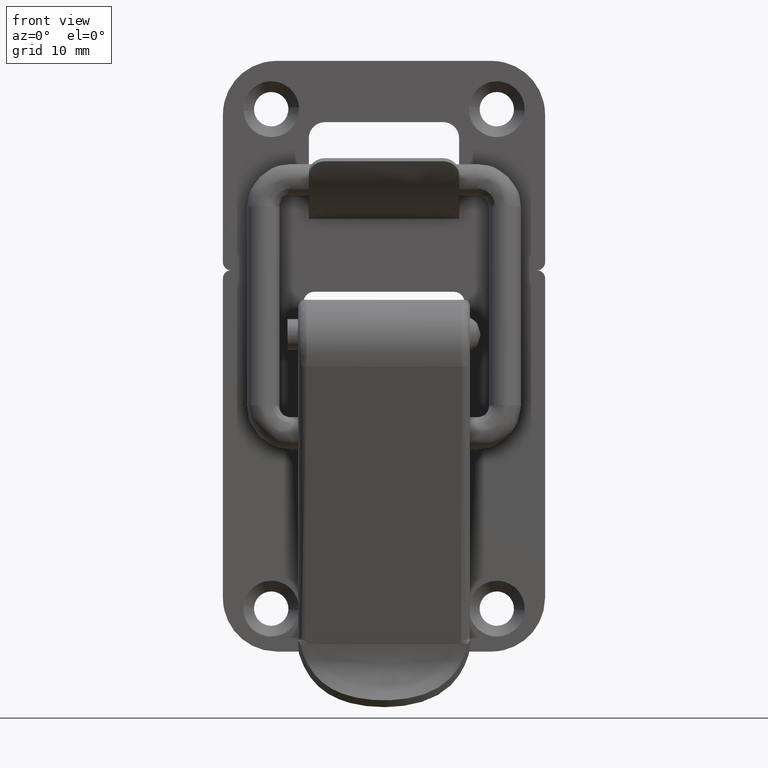
[diagram: clean part render]
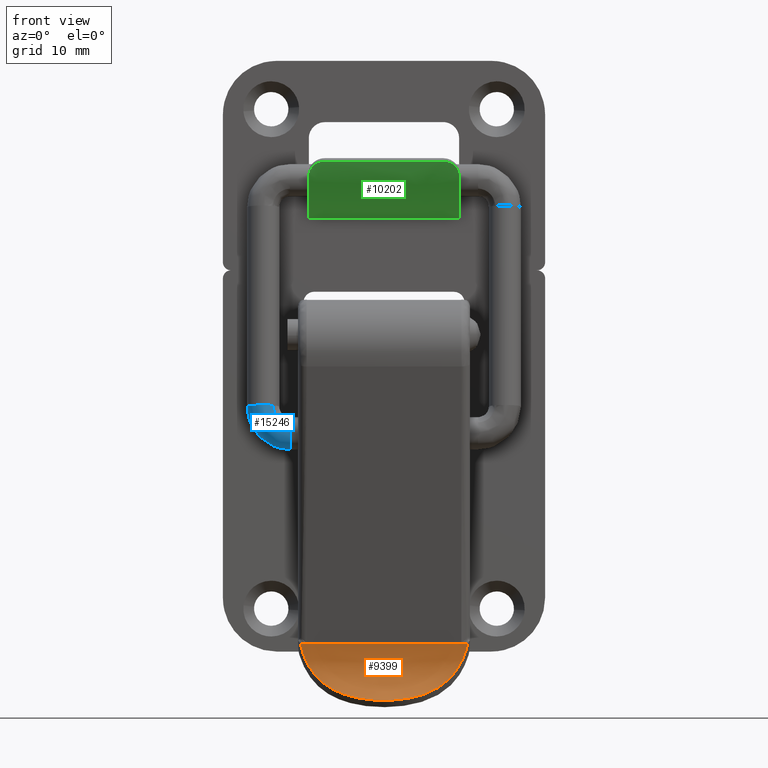
[diagram: same view with three faces highlighted in distinct colors, each labeled with its STEP entity id]
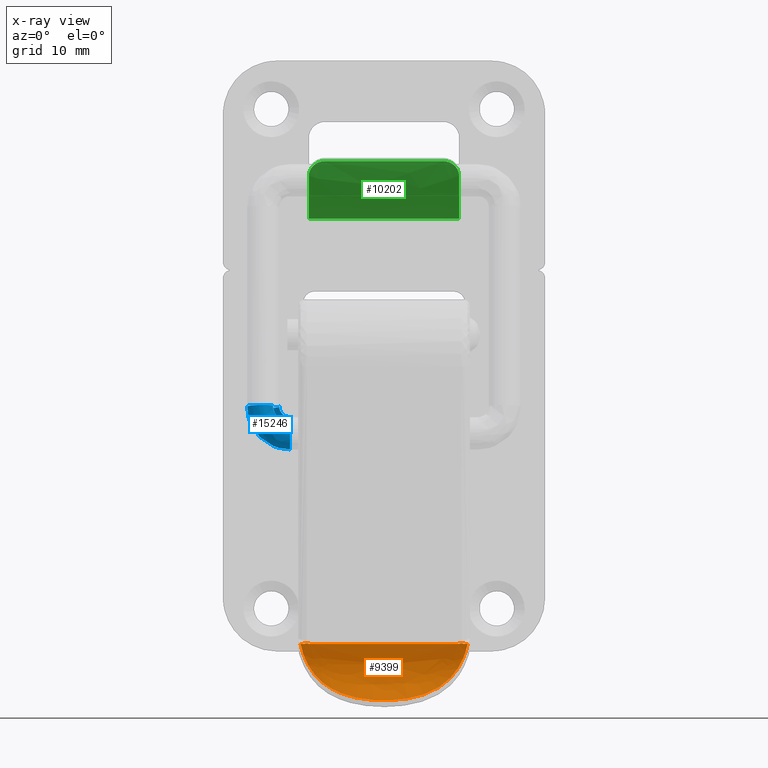
[diagram: x-ray of the same camera — body ghosted, the three highlighted faces saturated]
A machine part, front view with three faces highlighted in distinct colors.
The next image is the same camera in x-ray (body ghosted, the three faces saturated) — at least one of them is partly hidden behind the body in this view.
Their STEP definitions:

[orange] entity #9399 — the highlighted face is a freeform B-spline surface patch.
#7614=CARTESIAN_POINT('',(-0.400000023674887,-7.789965357478420,-43.178766919099587));
#7615=VERTEX_POINT('',#7614);
#7623=CARTESIAN_POINT('',(-0.400000023675061,7.789965357478059,-43.178766919100497));
#7624=VERTEX_POINT('',#7623);
#7625=CARTESIAN_POINT('',(-0.400000023675061,7.789965357478059,-43.178766919100497));
#7626=CARTESIAN_POINT('',(-0.339292641057444,7.743745292696410,-43.386213897576930));
#7627=CARTESIAN_POINT('',(-0.293192592856434,7.689321381823810,-43.593470082456342));
#7628=CARTESIAN_POINT('',(-0.227688977769893,7.562235662606833,-44.006626888851891));
#7629=CARTESIAN_POINT('',(-0.208303261411680,7.489573165808500,-44.212530174738937));
#7630=CARTESIAN_POINT('',(-0.199819393986108,7.385458791185387,-44.468325206823643));
#7631=CARTESIAN_POINT('',(-0.198912895905423,7.363922031291227,-44.519508521291350));
#7632=CARTESIAN_POINT('',(-0.198656475895696,7.319760709449668,-44.621003224381703));
#7633=CARTESIAN_POINT('',(-0.200593314390482,7.251862119023220,-44.772022524204523));
#7634=CARTESIAN_POINT('',(-0.209163175997045,7.178922398592534,-44.919372171797697));
#7635=CARTESIAN_POINT('',(-0.234359641925066,7.026093002192313,-45.209141552371513));
#7636=CARTESIAN_POINT('',(-0.261884217268189,6.914950118712786,-45.395755458075833));
#7637=CARTESIAN_POINT('',(-0.316537162662462,6.733229895655794,-45.665510716079801));
#7638=CARTESIAN_POINT('',(-0.337015300208910,6.670070906444917,-45.753840256984461));
#7639=CARTESIAN_POINT('',(-0.381901330212700,6.538875863632190,-45.926578366635937));
#7640=CARTESIAN_POINT('',(-0.406131509993985,6.471343286183389,-46.010338017282173));
#7641=CARTESIAN_POINT('',(-0.483301738431257,6.262943535082534,-46.254129837711147));
#7642=CARTESIAN_POINT('',(-0.540700611298888,6.116278172675242,-46.406686681444462));
#7643=CARTESIAN_POINT('',(-0.632707344392547,5.884614797587778,-46.621655993006733));
#7644=CARTESIAN_POINT('',(-0.664366927042366,5.805448444281841,-46.690998162683123));
#7645=CARTESIAN_POINT('',(-0.729220067925607,5.643202670550101,-46.825202932169610));
#7646=CARTESIAN_POINT('',(-0.762505461519485,5.559891729360454,-46.890231040088103));
#7647=CARTESIAN_POINT('',(-0.863267949776718,5.305967276430093,-47.077406935204472));
#7648=CARTESIAN_POINT('',(-0.931519320260503,5.131648358607420,-47.191569062687670));
#7649=CARTESIAN_POINT('',(-1.135019257252266,4.594167028188581,-47.506439770538222));
#7650=CARTESIAN_POINT('',(-1.268889273222401,4.216548310671105,-47.679752729343477));
#7651=CARTESIAN_POINT('',(-1.422562718371659,3.721250481015787,-47.860215794344541));
#7652=CARTESIAN_POINT('',(-1.452652735836770,3.620927065422858,-47.894511011897613));
#7653=CARTESIAN_POINT('',(-1.511122153763244,3.418349110521917,-47.959486405165798));
#7654=CARTESIAN_POINT('',(-1.539389172516920,3.316490399995790,-47.990044551597293));
#7655=CARTESIAN_POINT('',(-1.621040045593693,3.009236435109732,-48.076343007745507));
#7656=CARTESIAN_POINT('',(-1.671268610575285,2.802165832305446,-48.126725264526549));
#7657=CARTESIAN_POINT('',(-1.807595413272659,2.174407228892227,-48.259004027785110));
#7658=CARTESIAN_POINT('',(-1.879297197845865,1.747211756113360,-48.322272156924413));
#7659=CARTESIAN_POINT('',(-1.940072728078657,1.202286736682950,-48.374830887654568));
#7660=CARTESIAN_POINT('',(-1.950778915569862,1.092795740088009,-48.383988530242661));
#7661=CARTESIAN_POINT('',(-1.969133014005796,0.873806798087201,-48.399592306487122));
#7662=CARTESIAN_POINT('',(-1.976796814279416,0.764174688410167,-48.406052189533682));
#7663=CARTESIAN_POINT('',(-1.995192850439707,0.434866777676100,-48.421501928168681));
#7664=CARTESIAN_POINT('',(-2.001327032898402,0.214759767750380,-48.426578577382983));
#7665=CARTESIAN_POINT('',(-2.000995659085887,-0.447094348711792,-48.426302959561411));
#7666=CARTESIAN_POINT('',(-1.975758361178955,-0.885923471470201,-48.405719633614822));
#7667=CARTESIAN_POINT('',(-1.877597577946951,-1.758757424921551,-48.320773833839311));
#7668=CARTESIAN_POINT('',(-1.805543139123348,-2.185119362668734,-48.257100601447512));
#7669=CARTESIAN_POINT('',(-1.624260542405729,-3.017341623205996,-48.081023357107227));
#7670=CARTESIAN_POINT('',(-1.514949267852762,-3.423339639431748,-47.968663050942297));
#7671=CARTESIAN_POINT('',(-1.361669878330311,-3.917547033469533,-47.788718718746502));
#7672=CARTESIAN_POINT('',(-1.330190272489200,-4.015720313152293,-47.750731864280347));
#7673=CARTESIAN_POINT('',(-1.265792662449680,-4.210698751922728,-47.670430577651913));
#7674=CARTESIAN_POINT('',(-1.232887697395979,-4.307448790790413,-47.628123174671117));
#7675=CARTESIAN_POINT('',(-1.133355947801258,-4.592857882683560,-47.495513158161820));
#7676=CARTESIAN_POINT('',(-1.065603320667873,-4.777599494379820,-47.399169729121553));
#7677=CARTESIAN_POINT('',(-0.929872497004868,-5.135903692231399,-47.188882088542712));
#7678=CARTESIAN_POINT('',(-0.861886571868078,-5.309466336918313,-47.074942605740283));
#7679=CARTESIAN_POINT('',(-0.761970279302245,-5.561231264397234,-46.889185091259108));
#7680=CARTESIAN_POINT('',(-0.729012548949031,-5.643721952071211,-46.824787075754301));
#7681=CARTESIAN_POINT('',(-0.664228429664585,-5.805794805465790,-46.690697912536102));
#7682=CARTESIAN_POINT('',(-0.632317231636738,-5.885589701533156,-46.620806084016387));
#7683=CARTESIAN_POINT('',(-0.477861112090060,-6.274531294766708,-46.259615846625557));
#7684=CARTESIAN_POINT('',(-0.371616521499980,-6.550318271836247,-45.936785256430383));
#7685=CARTESIAN_POINT('',(-0.280387782992266,-6.853370044127404,-45.487229882650702));
#7686=CARTESIAN_POINT('',(-0.264233102857231,-6.911944527011213,-45.394916071545083));
#7687=CARTESIAN_POINT('',(-0.236819030730680,-7.024730237730648,-45.205883748323693));
#7688=CARTESIAN_POINT('',(-0.225705141357292,-7.078340480615917,-45.110185021401122));
#7689=CARTESIAN_POINT('',(-0.200604254548122,-7.231339557897931,-44.819770574467789));
#7690=CARTESIAN_POINT('',(-0.194838671063905,-7.322917406131167,-44.621745369505881));
#7691=CARTESIAN_POINT('',(-0.208019613845412,-7.487491527599709,-44.217877033337167));
#7692=CARTESIAN_POINT('',(-0.226944948722946,-7.560491883243565,-44.012035451498377));
#7693=CARTESIAN_POINT('',(-0.268301478099154,-7.641102066211721,-43.750294623004550));
#7694=CARTESIAN_POINT('',(-0.277467553152496,-7.656688762718605,-43.697716241014007));
#7695=CARTESIAN_POINT('',(-0.297440136131826,-7.686545658379638,-43.593097050385687));
#7696=CARTESIAN_POINT('',(-0.329913988646438,-7.729469647212657,-43.436610675702042));
#7697=CARTESIAN_POINT('',(-0.369934219297263,-7.767074510169148,-43.281506651973707));
#7698=CARTESIAN_POINT('',(-0.400000023674887,-7.789965357478420,-43.178766919099587));
#7699=B_SPLINE_CURVE_WITH_KNOTS('',3,(#7625,#7626,#7627,#7628,#7629,#7630,#7631,#7632,#7633,#7634,#7635,#7636,#7637,#7638,#7639,#7640,#7641,#7642,#7643,#7644,#7645,#7646,#7647,#7648,#7649,#7650,#7651,#7652,#7653,#7654,#7655,#7656,#7657,#7658,#7659,#7660,#7661,#7662,#7663,#7664,#7665,#7666,#7667,#7668,#7669,#7670,#7671,#7672,#7673,#7674,#7675,#7676,#7677,#7678,#7679,#7680,#7681,#7682,#7683,#7684,#7685,#7686,#7687,#7688,#7689,#7690,#7691,#7692,#7693,#7694,#7695,#7696,#7697,#7698),.UNSPECIFIED.,.F.,.U.,(4,2,2,2,1,2,2,2,2,2,2,2,2,2,2,2,2,2,2,2,2,2,2,2,2,2,2,2,2,2,2,2,2,2,2,2,1,4),(0.0,0.031250000000000,0.062499999999999,0.070312499999999,0.078124999999999,0.093749999999999,0.124999999999998,0.140624999999998,0.156249999999998,0.187499999999999,0.203124999999999,0.218749999999999,0.249999999999999,0.312499999999999,0.328124999999999,0.343749999999999,0.374999999999999,0.437499999999999,0.453124999999999,0.468749999999999,0.499999999999999,0.562499999999999,0.624999999999999,0.687499999999999,0.703124999999999,0.718749999999999,0.749999999999999,0.781249999999999,0.796874999999998,0.812499999999998,0.874999999999996,0.890624999999996,0.906249999999997,0.937499999999997,0.968749999999998,0.976562499999998,0.984374999999999,1.0),.UNSPECIFIED.);
#7700=EDGE_CURVE('',#7624,#7615,#7699,.T.);
#8418=CARTESIAN_POINT('',(-0.400000023674807,-6.826073099280410,-43.178766919099147));
#8419=VERTEX_POINT('',#8418);
#8420=CARTESIAN_POINT('',(-0.400000023674807,6.826073099280520,-43.178766919099147));
#8421=VERTEX_POINT('',#8420);
#8422=CARTESIAN_POINT('',(-0.400000023674807,-6.826073099280410,-43.178766919099147));
#8423=CARTESIAN_POINT('',(-0.400000023674807,6.826073099280520,-43.178766919099147));
#8424=QUASI_UNIFORM_CURVE('',1,(#8422,#8423),.UNSPECIFIED.,.F.,.U.);
#8425=EDGE_CURVE('',#8419,#8421,#8424,.T.);
#8898=CARTESIAN_POINT('',(-0.400000023674807,7.573926900714119,-43.178766919099147));
#8899=VERTEX_POINT('',#8898);
#8907=CARTESIAN_POINT('',(-0.400000023674807,6.826073099280520,-43.178766919099147));
#8908=CARTESIAN_POINT('',(-0.400000023674809,6.889792219008425,-43.178766919099147));
#8909=CARTESIAN_POINT('',(-0.400940012453261,6.953089813847818,-43.175513830708731));
#8910=CARTESIAN_POINT('',(-0.405727418845544,7.046567567435392,-43.159330416759147));
#8911=CARTESIAN_POINT('',(-0.407948574768643,7.077617310670241,-43.151846695040511));
#8912=CARTESIAN_POINT('',(-0.412490660576789,7.123107363080361,-43.136758521553702));
#8913=CARTESIAN_POINT('',(-0.414222943436619,7.138004102445522,-43.131035399197863));
#8914=CARTESIAN_POINT('',(-0.416847068692728,7.160337820800740,-43.122426045463833));
#8915=CARTESIAN_POINT('',(-0.417726512040339,7.167780041215972,-43.119550992294663));
#8916=CARTESIAN_POINT('',(-0.419180993903624,7.183050188129089,-43.114807946687293));
#8917=CARTESIAN_POINT('',(-0.419731530008073,7.190891234265251,-43.113019109616758));
#8918=CARTESIAN_POINT('',(-0.419820464885220,7.206887083049674,-43.112730023489917));
#8919=CARTESIAN_POINT('',(-0.419338192684960,7.214851972020190,-43.114296547413673));
#8920=CARTESIAN_POINT('',(-0.417961710007320,7.230091221814288,-43.118783096510789));
#8921=CARTESIAN_POINT('',(-0.417091302904808,7.237554395318514,-43.121626735853773));
#8922=CARTESIAN_POINT('',(-0.414476616462071,7.259885227882164,-43.130199906250212));
#8923=CARTESIAN_POINT('',(-0.412725667704863,7.274751007057070,-43.135980877292333));
#8924=CARTESIAN_POINT('',(-0.408140318485721,7.320081396099416,-43.151204325380107));
#8925=CARTESIAN_POINT('',(-0.405859044333339,7.351321645922934,-43.158886781531173));
#8926=CARTESIAN_POINT('',(-0.400944026859304,7.445949866497713,-43.175497737926598));
#8927=CARTESIAN_POINT('',(-0.400000023674866,7.509782361929603,-43.178766919098948));
#8928=CARTESIAN_POINT('',(-0.400000023674807,7.573926900714119,-43.178766919099147));
#8929=B_SPLINE_CURVE_WITH_KNOTS('',3,(#8907,#8908,#8909,#8910,#8911,#8912,#8913,#8914,#8915,#8916,#8917,#8918,#8919,#8920,#8921,#8922,#8923,#8924,#8925,#8926,#8927,#8928),.UNSPECIFIED.,.F.,.U.,(4,2,2,2,2,2,2,2,2,2,4),(0.0,0.250000000000019,0.375000000000028,0.437500000000031,0.468750000000026,0.500000000000022,0.531250000000017,0.562500000000012,0.625000000000012,0.750000000000006,1.0),.UNSPECIFIED.);
#8930=EDGE_CURVE('',#8421,#8899,#8929,.T.);
#8992=CARTESIAN_POINT('',(-0.400000023674807,7.573926900714119,-43.178766919099147));
#8993=CARTESIAN_POINT('',(-0.400000023675061,7.789965357478059,-43.178766919100497));
#8994=QUASI_UNIFORM_CURVE('',1,(#8992,#8993),.UNSPECIFIED.,.F.,.U.);
#8995=EDGE_CURVE('',#8899,#7624,#8994,.T.);
#9248=CARTESIAN_POINT('',(-0.400000023674807,-7.573926900717900,-43.178766919099147));
#9249=VERTEX_POINT('',#9248);
#9250=CARTESIAN_POINT('',(-0.400000023674807,-7.573926900717900,-43.178766919099147));
#9251=CARTESIAN_POINT('',(-0.400000023674887,-7.510207780993779,-43.178766919099587));
#9252=CARTESIAN_POINT('',(-0.400940012452867,-7.446910186158027,-43.175513830710067));
#9253=CARTESIAN_POINT('',(-0.405727418845003,-7.353432432576133,-43.159330416760952));
#9254=CARTESIAN_POINT('',(-0.407948574767582,-7.322382689343056,-43.151846695044071));
#9255=CARTESIAN_POINT('',(-0.412490660575055,-7.276892636935193,-43.136758521559450));
#9256=CARTESIAN_POINT('',(-0.414222943434899,-7.261995897571106,-43.131035399203540));
#9257=CARTESIAN_POINT('',(-0.416847068690991,-7.239662179217440,-43.122426045469503));
#9258=CARTESIAN_POINT('',(-0.417726512040959,-7.232219958805687,-43.119550992292623));
#9259=CARTESIAN_POINT('',(-0.419180993905767,-7.216949811895501,-43.114807946680337));
#9260=CARTESIAN_POINT('',(-0.419731530007105,-7.209108765755688,-43.113019109619927));
#9261=CARTESIAN_POINT('',(-0.419820464885988,-7.193112916973145,-43.112730023487423));
#9262=CARTESIAN_POINT('',(-0.419338192673624,-7.185148028012886,-43.114296547450550));
#9263=CARTESIAN_POINT('',(-0.417961710000029,-7.169908778215347,-43.118783096534649));
#9264=CARTESIAN_POINT('',(-0.417091302907300,-7.162445604703660,-43.121626735845652));
#9265=CARTESIAN_POINT('',(-0.414476616464515,-7.140114772138515,-43.130199906242183));
#9266=CARTESIAN_POINT('',(-0.412725667710009,-7.125248992959497,-43.135980877275337));
#9267=CARTESIAN_POINT('',(-0.408140318492889,-7.079918603911653,-43.151204325356140));
#9268=CARTESIAN_POINT('',(-0.405859044336262,-7.048678354092796,-43.158886781521339));
#9269=CARTESIAN_POINT('',(-0.400944026859439,-6.954050133508775,-43.175497737926072));
#9270=CARTESIAN_POINT('',(-0.400000023675926,-6.890217638070726,-43.178766919095352));
#9271=CARTESIAN_POINT('',(-0.400000023674808,-6.826073099280410,-43.178766919099147));
#9272=B_SPLINE_CURVE_WITH_KNOTS('',3,(#9250,#9251,#9252,#9253,#9254,#9255,#9256,#9257,#9258,#9259,#9260,#9261,#9262,#9263,#9264,#9265,#9266,#9267,#9268,#9269,#9270,#9271),.UNSPECIFIED.,.F.,.U.,(4,2,2,2,2,2,2,2,2,2,4),(0.0,0.249999999999988,0.374999999999983,0.437499999999983,0.468749999999984,0.499999999999985,0.531249999999986,0.562499999999987,0.624999999999990,0.749999999999995,1.0),.UNSPECIFIED.);
#9273=EDGE_CURVE('',#9249,#8419,#9272,.T.);
#9299=CARTESIAN_POINT('',(-0.400000023674887,-7.789965357478420,-43.178766919099587));
#9300=CARTESIAN_POINT('',(-0.400000023674807,-7.573926900717900,-43.178766919099147));
#9301=QUASI_UNIFORM_CURVE('',1,(#9299,#9300),.UNSPECIFIED.,.F.,.U.);
#9302=EDGE_CURVE('',#7615,#9249,#9301,.T.);
#9377=CARTESIAN_POINT('',(-2.133175602186105,-8.179463625352332,-48.532515041164579));
#9378=CARTESIAN_POINT('',(-2.133175602186105,8.189201082048818,-48.532515041164579));
#9379=CARTESIAN_POINT('',(0.760186963241625,-8.179463625352332,-46.287253616664756));
#9380=CARTESIAN_POINT('',(0.760186963241625,8.189201082048818,-46.287253616664756));
#9381=CARTESIAN_POINT('',(-0.508135445148416,-8.179463625352332,-42.851543490978763));
#9382=CARTESIAN_POINT('',(-0.508135445148416,8.189201082048818,-42.851543490978763));
#9390=(BOUNDED_SURFACE()B_SPLINE_SURFACE(1,2,((#9377,#9379,#9381),(#9378,#9380,#9382)),.UNSPECIFIED.,.F.,.F.,.U.)B_SPLINE_SURFACE_WITH_KNOTS((2,2),(3,3),(0.0,16.368664707401152),(0.0,6.541006997101055),.UNSPECIFIED.)GEOMETRIC_REPRESENTATION_ITEM()RATIONAL_B_SPLINE_SURFACE(((1.0,0.805435760521363,0.996867619637071),(1.0,0.805435760521363,0.996867619637071)))REPRESENTATION_ITEM('')SURFACE());
#9391=ORIENTED_EDGE('',*,*,#7700,.T.);
#9392=ORIENTED_EDGE('',*,*,#9302,.T.);
#9393=ORIENTED_EDGE('',*,*,#9273,.T.);
#9394=ORIENTED_EDGE('',*,*,#8425,.T.);
#9395=ORIENTED_EDGE('',*,*,#8930,.T.);
#9396=ORIENTED_EDGE('',*,*,#8995,.T.);
#9397=EDGE_LOOP('',(#9391,#9392,#9393,#9394,#9395,#9396));
#9398=FACE_OUTER_BOUND('',#9397,.T.);
#9399=ADVANCED_FACE('',(#9398),#9390,.F.);

[blue] entity #15246 — the highlighted face is a freeform B-spline surface patch.
#14221=CARTESIAN_POINT('',(-1.861828444034098,8.750000000000000,-22.167229841181829));
#14222=VERTEX_POINT('',#14221);
#14223=CARTESIAN_POINT('',(-2.388999999999617,8.750000000000000,-22.070766999999801));
#14224=VERTEX_POINT('',#14223);
#14225=CARTESIAN_POINT('',(-1.861828444034098,8.750000000000000,-22.167229841181829));
#14226=CARTESIAN_POINT('',(-2.030011157831155,8.750000000000000,-22.104149736005869));
#14227=CARTESIAN_POINT('',(-2.209253846936301,8.750000000000000,-22.070543353078840));
#14228=CARTESIAN_POINT('',(-2.388999999999617,8.750000000000000,-22.070766999999801));
#14229=B_SPLINE_CURVE_WITH_KNOTS('',3,(#14225,#14226,#14227,#14228),.UNSPECIFIED.,.F.,.U.,(4,4),(0.942811831421947,1.0),.UNSPECIFIED.);
#14230=EDGE_CURVE('',#14222,#14224,#14229,.T.);
#14232=CARTESIAN_POINT('',(-3.482421769235130,8.750000000000000,-22.543961663051888));
#14233=VERTEX_POINT('',#14232);
#14243=CARTESIAN_POINT('',(-2.388999999999617,8.750000000000000,-25.070766999999801));
#14244=VERTEX_POINT('',#14243);
#14245=CARTESIAN_POINT('',(-3.482421769235130,8.750000000000000,-22.543961663051888));
#14246=CARTESIAN_POINT('',(-3.740014313390513,8.750000000000000,-22.819012955612539));
#14247=CARTESIAN_POINT('',(-3.888999999999615,8.750000000000000,-23.193775681466889));
#14248=CARTESIAN_POINT('',(-3.888999999999615,8.750000000000000,-23.963466081698499));
#14249=CARTESIAN_POINT('',(-3.727340355414335,8.750000000000000,-24.353746988144700));
#14250=CARTESIAN_POINT('',(-3.171979988144540,8.750000000000000,-24.909107355414498));
#14251=CARTESIAN_POINT('',(-2.781699081698340,8.750000000000000,-25.070766999999801));
#14252=CARTESIAN_POINT('',(-2.388999999999617,8.750000000000000,-25.070766999999801));
#14253=B_SPLINE_CURVE_WITH_KNOTS('',3,(#14245,#14246,#14247,#14248,#14249,#14250,#14251,#14252),.UNSPECIFIED.,.F.,.U.,(4,2,2,4),(0.129999936305519,0.250000000000000,0.375000000000000,0.500000000000000),.UNSPECIFIED.);
#14254=EDGE_CURVE('',#14233,#14244,#14253,.T.);
#14256=CARTESIAN_POINT('',(-0.891856057337033,8.750000000000000,-23.662335884977839));
#14257=VERTEX_POINT('',#14256);
#14258=CARTESIAN_POINT('',(-2.388999999999617,8.750000000000000,-25.070766999999801));
#14259=CARTESIAN_POINT('',(-1.996292810126914,8.750000000000000,-25.070767515058080));
#14260=CARTESIAN_POINT('',(-1.606000705252999,8.750000000000000,-24.909108581834278));
#14261=CARTESIAN_POINT('',(-1.072223652720570,8.750000000000000,-24.375354276608501));
#14262=CARTESIAN_POINT('',(-0.914807171818698,8.750000000000000,-24.023518718764169));
#14263=CARTESIAN_POINT('',(-0.891856057337033,8.750000000000000,-23.662335884977839));
#14264=B_SPLINE_CURVE_WITH_KNOTS('',3,(#14258,#14259,#14260,#14261,#14262,#14263),.UNSPECIFIED.,.F.,.U.,(4,2,4),(0.500000000000000,0.625000000000000,0.740274466526528),.UNSPECIFIED.);
#14265=EDGE_CURVE('',#14244,#14257,#14264,.T.);
#14343=CARTESIAN_POINT('',(-0.891856057337033,8.750000000000000,-23.662335884977839));
#14344=CARTESIAN_POINT('',(-0.889917626878758,8.750000000000000,-23.631854013397142));
#14345=CARTESIAN_POINT('',(-0.888936244410301,8.750000000000000,-23.601305387856051));
#14346=CARTESIAN_POINT('',(-0.888896965365168,8.750000000000000,-23.177916772306482));
#14347=CARTESIAN_POINT('',(-1.050510651288134,8.750000000000000,-22.787476891195301));
#14348=CARTESIAN_POINT('',(-1.478765295043779,8.750000000000000,-22.358929935632830));
#14349=CARTESIAN_POINT('',(-1.662521869327140,8.750000000000000,-22.242359122099700));
#14350=CARTESIAN_POINT('',(-1.861828444034098,8.750000000000000,-22.167229841181829));
#14351=B_SPLINE_CURVE_WITH_KNOTS('',3,(#14343,#14344,#14345,#14346,#14347,#14348,#14349,#14350),.UNSPECIFIED.,.F.,.U.,(4,2,2,4),(0.740274466526528,0.750000000000000,0.875000000000000,0.942811831421947),.UNSPECIFIED.);
#14352=EDGE_CURVE('',#14257,#14222,#14351,.T.);
#14400=CARTESIAN_POINT('',(-1.754427416341608,9.799761788338227,-21.109401986915810));
#14401=VERTEX_POINT('',#14400);
#14402=CARTESIAN_POINT('',(-2.286099746448575,9.757645618658208,-21.055514677762179));
#14403=VERTEX_POINT('',#14402);
#14404=CARTESIAN_POINT('',(-1.754427416341608,9.799761788338227,-21.109401986915810));
#14405=CARTESIAN_POINT('',(-1.927239508435160,9.753934028792102,-21.091886727797899));
#14406=CARTESIAN_POINT('',(-2.108277025537927,9.739528792649951,-21.073537785977759));
#14407=CARTESIAN_POINT('',(-2.286099746448575,9.757645618658208,-21.055514677762179));
#14408=B_SPLINE_CURVE_WITH_KNOTS('',3,(#14404,#14405,#14406,#14407),.UNSPECIFIED.,.F.,.U.,(4,4),(0.942815926448895,1.0),.UNSPECIFIED.);
#14409=EDGE_CURVE('',#14401,#14403,#14408,.T.);
#14462=CARTESIAN_POINT('',(-0.644461541219619,11.190131857135750,-21.221901873973319));
#14463=VERTEX_POINT('',#14462);
#14469=CARTESIAN_POINT('',(-1.985128444094263,12.742354270283039,-21.086019432733849));
#14470=VERTEX_POINT('',#14469);
#14471=CARTESIAN_POINT('',(-1.985128444094263,12.742354270283039,-21.086019432733849));
#14472=CARTESIAN_POINT('',(-1.790774555457831,12.722554789631451,-21.105718047518131));
#14473=CARTESIAN_POINT('',(-1.600413711000236,12.663921104138311,-21.125011949845948));
#14474=CARTESIAN_POINT('',(-1.256370517168848,12.477822968399620,-21.159882228952259));
#14475=CARTESIAN_POINT('',(-1.102823534100490,12.350431739823719,-21.175444885764929));
#14476=CARTESIAN_POINT('',(-0.855822381212089,12.046166183831939,-21.200479530514919));
#14477=CARTESIAN_POINT('',(-0.762465395798261,11.869411571919590,-21.209941668388549));
#14478=CARTESIAN_POINT('',(-0.658848974416652,11.522554202618901,-21.220443644857070));
#14479=CARTESIAN_POINT('',(-0.637953545259462,11.355799475646160,-21.222561487778108));
#14480=CARTESIAN_POINT('',(-0.644461541219619,11.190131857135750,-21.221901873973319));
#14481=B_SPLINE_CURVE_WITH_KNOTS('',3,(#14471,#14472,#14473,#14474,#14475,#14476,#14477,#14478,#14479,#14480),.UNSPECIFIED.,.F.,.U.,(4,2,2,2,4),(0.500000000000000,0.562500000000000,0.625000000000000,0.687500000000000,0.740277500986796),.UNSPECIFIED.);
#14482=EDGE_CURVE('',#14470,#14463,#14481,.T.);
#14484=CARTESIAN_POINT('',(-3.320940825018746,10.338679120237760,-20.950629018267570));
#14485=VERTEX_POINT('',#14484);
#14486=CARTESIAN_POINT('',(-3.320940825018746,10.338679120237760,-20.950629018267570));
#14487=CARTESIAN_POINT('',(-3.430084559836481,10.482188615328960,-20.939566824426279));
#14488=CARTESIAN_POINT('',(-3.513237726313139,10.645636785238320,-20.931138888112599));
#14489=CARTESIAN_POINT('',(-3.621098611437079,11.006705630320360,-20.920206716686302));
#14490=CARTESIAN_POINT('',(-3.640052439562867,11.205913839855830,-20.918285663488771));
#14491=CARTESIAN_POINT('',(-3.600656694820297,11.596610284809650,-20.922278594146601));
#14492=CARTESIAN_POINT('',(-3.542322622495214,11.787944797860440,-20.928191006954250));
#14493=CARTESIAN_POINT('',(-3.357174563250874,12.133747240811889,-20.946956570768972));
#14494=CARTESIAN_POINT('',(-3.230433424186731,12.288079112217689,-20.959802338327989));
#14495=CARTESIAN_POINT('',(-2.927720164089237,12.536342265934341,-20.990483648319049));
#14496=CARTESIAN_POINT('',(-2.751867147797262,12.630175867295520,-21.008307118965760));
#14497=CARTESIAN_POINT('',(-2.377674036593918,12.743103917135111,-21.046233223813800));
#14498=CARTESIAN_POINT('',(-2.179481170693005,12.762153933248150,-21.066320935712401));
#14499=CARTESIAN_POINT('',(-1.985128444094263,12.742354270283039,-21.086019432733849));
#14500=B_SPLINE_CURVE_WITH_KNOTS('',3,(#14486,#14487,#14488,#14489,#14490,#14491,#14492,#14493,#14494,#14495,#14496,#14497,#14498,#14499),.UNSPECIFIED.,.F.,.U.,(4,2,2,2,2,2,4),(0.129999066632794,0.187500000000000,0.250000000000000,0.312500000000000,0.375000000000000,0.437500000000000,0.500000000000000),.UNSPECIFIED.);
#14501=EDGE_CURVE('',#14485,#14470,#14500,.T.);
#14531=CARTESIAN_POINT('',(-0.644461541219619,11.190131857135750,-21.221901873973319));
#14532=CARTESIAN_POINT('',(-0.645660718389194,11.159613062119529,-21.221780332112090));
#14533=CARTESIAN_POINT('',(-0.647789852533555,11.129131157663160,-21.221564535052501));
#14534=CARTESIAN_POINT('',(-0.670553909705241,10.903393582835831,-21.219257298344321));
#14535=CARTESIAN_POINT('',(-0.728889891676019,10.712058128431019,-21.213344691821160));
#14536=CARTESIAN_POINT('',(-0.914041867688422,10.366253768389230,-21.194578730683080));
#14537=CARTESIAN_POINT('',(-1.040785012333852,10.211920922001390,-21.181732759672521));
#14538=CARTESIAN_POINT('',(-1.343502075694364,9.963655932402501,-21.151051063864202));
#14539=CARTESIAN_POINT('',(-1.519356888171642,9.869821470863450,-21.133227411003570));
#14540=CARTESIAN_POINT('',(-1.722368595892824,9.808554107963598,-21.112651288301102));
#14541=CARTESIAN_POINT('',(-1.738362465180758,9.804022173485874,-21.111030239837401));
#14542=CARTESIAN_POINT('',(-1.754427416341608,9.799761788338227,-21.109401986915810));
#14543=B_SPLINE_CURVE_WITH_KNOTS('',3,(#14531,#14532,#14533,#14534,#14535,#14536,#14537,#14538,#14539,#14540,#14541,#14542),.UNSPECIFIED.,.F.,.U.,(4,2,2,2,2,4),(0.740277500986796,0.750000000000000,0.812500000000000,0.875000000000000,0.937500000000000,0.942815926448895),.UNSPECIFIED.);
#14544=EDGE_CURVE('',#14463,#14401,#14543,.T.);
#15133=CARTESIAN_POINT('',(-3.294951959332109,10.306099539616470,-20.940819884851070));
#15134=CARTESIAN_POINT('',(-3.538644124070637,10.610184073618189,-20.913730918654110));
#15135=CARTESIAN_POINT('',(-3.657749297227026,11.012590306836360,-20.898496710120028));
#15136=CARTESIAN_POINT('',(-3.578544840490000,11.791956628857520,-20.900399642658840));
#15137=CARTESIAN_POINT('',(-3.379081267446318,12.163947292970059,-20.917692793796029));
#15138=CARTESIAN_POINT('',(-2.773739309540316,12.660525044897380,-20.975144401827119));
#15139=CARTESIAN_POINT('',(-1.965614209507981,12.903193947990349,-21.055144352467941));
#15140=CARTESIAN_POINT('',(-1.222869547163163,12.502519421600301,-21.133573534620140));
#15141=CARTESIAN_POINT('',(-0.729781620934624,11.894517667674350,-21.188328233799808));
#15142=CARTESIAN_POINT('',(-0.488990195096297,11.082443658879900,-21.219115318934371));
#15143=CARTESIAN_POINT('',(-0.888210753182993,10.335575477225630,-21.184521967385368));
#15144=CARTESIAN_POINT('',(-1.504523841145621,9.830887569261723,-21.126022125458871));
#15145=CARTESIAN_POINT('',(-1.924750656757216,9.709766055907771,-21.084382158827090));
#15146=CARTESIAN_POINT('',(-2.325861476243612,9.761780213991314,-21.043319064216959));
#15147=CARTESIAN_POINT('',(-3.336988297782286,10.309424598557669,-21.355566099298940));
#15148=CARTESIAN_POINT('',(-3.588752792189812,10.614142217730260,-21.408121752106560));
#15149=CARTESIAN_POINT('',(-3.718540373240809,11.017384513813470,-21.498284168924538));
#15150=CARTESIAN_POINT('',(-3.660025226755579,11.798367414819070,-21.704315562075841));
#15151=CARTESIAN_POINT('',(-3.470436636771434,12.171128747216461,-21.819038983461748));
#15152=CARTESIAN_POINT('',(-2.878276989572145,12.668734582094910,-22.006552191239670));
#15153=CARTESIAN_POINT('',(-2.076593855075163,12.911905729613091,-22.150110979292620));
#15154=CARTESIAN_POINT('',(-1.323212759864630,12.510401921056831,-22.123597143130819));
#15155=CARTESIAN_POINT('',(-0.813984625350740,11.901140957447440,-22.019106520534208));
#15156=CARTESIAN_POINT('',(-0.551635622262595,11.087383800067670,-21.837198498725890));
#15157=CARTESIAN_POINT('',(-0.931029570413596,10.338962386301350,-21.606988409722060));
#15158=CARTESIAN_POINT('',(-1.533945042737730,9.833222515823982,-21.416302688675710));
#15159=CARTESIAN_POINT('',(-1.950956525017878,9.711848022989260,-21.342939042618440));
#15160=CARTESIAN_POINT('',(-2.353448130225144,9.763970819630124,-21.315499295589039));
#15161=CARTESIAN_POINT('',(-3.378634825280711,10.140431023829530,-21.766466285765119));
#15162=CARTESIAN_POINT('',(-3.638431987575030,10.412787031821040,-21.898275238718551));
#15163=CARTESIAN_POINT('',(-3.778849492913529,10.773205697085871,-22.093316457064208));
#15164=CARTESIAN_POINT('',(-3.740922011839470,11.471251897094019,-22.502473443428261));
#15165=CARTESIAN_POINT('',(-3.561159891184848,11.804428535319371,-22.714148479932849));
#15166=CARTESIAN_POINT('',(-2.982117793687746,12.249192652610530,-23.031084330554311));
#15167=CARTESIAN_POINT('',(-2.186844977369229,12.466541130274180,-23.237889711078960));
#15168=CARTESIAN_POINT('',(-1.422879702777554,12.107673564825500,-23.106948409489430));
#15169=CARTESIAN_POINT('',(-0.897590652897262,11.563111574366220,-22.843994799517979));
#15170=CARTESIAN_POINT('',(-0.613789981432605,10.835770483848250,-22.450436608579579));
#15171=CARTESIAN_POINT('',(-0.973454731503649,10.166831420956109,-22.025570885850069));
#15172=CARTESIAN_POINT('',(-1.563038416323204,9.714803191557083,-21.703348772319270));
#15173=CARTESIAN_POINT('',(-1.976850364236263,9.606319613842107,-21.598417325796799));
#15174=CARTESIAN_POINT('',(-2.380715970492067,9.652906564444900,-21.584533986033470));
#15175=CARTESIAN_POINT('',(-3.437733736557812,9.557923866920252,-22.349558210654919));
#15176=CARTESIAN_POINT('',(-3.709031907041931,9.716920433056519,-22.594840404631540));
#15177=CARTESIAN_POINT('',(-3.864669117102844,9.927326403428296,-22.940044912468210));
#15178=CARTESIAN_POINT('',(-3.856218625070600,10.334833289816910,-23.640032878778509));
#15179=CARTESIAN_POINT('',(-3.690525836953022,10.529335852050060,-23.990521203271889));
#15180=CARTESIAN_POINT('',(-3.130265171130878,10.788981188725179,-24.492761671375849));
#15181=CARTESIAN_POINT('',(-2.344170513355820,10.915865342512729,-24.790122191014159));
#15182=CARTESIAN_POINT('',(-1.565051033650051,10.706364876470969,-24.509663843517870));
#15183=CARTESIAN_POINT('',(-1.016766302645375,10.388459326414960,-24.019826257491939));
#15184=CARTESIAN_POINT('',(-0.702251581946157,9.963850606913889,-23.323231788853839));
#15185=CARTESIAN_POINT('',(-1.033668474745840,9.573335946566971,-22.619662159159809));
#15186=CARTESIAN_POINT('',(-1.604163980065997,9.309449951171640,-22.109108939581269));
#15187=CARTESIAN_POINT('',(-2.013394899915855,9.246119178824994,-21.958979359731469));
#15188=CARTESIAN_POINT('',(-2.419227772854706,9.273315807337951,-21.964505807596929));
#15189=CARTESIAN_POINT('',(-3.454740054506612,9.149441705287130,-22.517348893998339));
#15190=CARTESIAN_POINT('',(-3.729400940232563,9.228231682615149,-22.795808892197929));
#15191=CARTESIAN_POINT('',(-3.889487976291536,9.332497327465498,-23.184917044887559));
#15192=CARTESIAN_POINT('',(-3.889655475690880,9.534435341948498,-23.969933332561240));
#15193=CARTESIAN_POINT('',(-3.728075950467078,9.630820113859928,-24.361004644618490));
#15194=CARTESIAN_POINT('',(-3.173306090024199,9.759486056394612,-24.917419448797091));
#15195=CARTESIAN_POINT('',(-2.389894676758512,9.822362860276707,-25.241253860654229));
#15196=CARTESIAN_POINT('',(-1.606344847047703,9.718545958470612,-24.917084025774070));
#15197=CARTESIAN_POINT('',(-1.051337217722326,9.561009456360461,-24.360915814657410));
#15198=CARTESIAN_POINT('',(-0.727842965391600,9.350596723316144,-23.575725934060930));
#15199=CARTESIAN_POINT('',(-1.051000802284434,9.157079090393840,-22.790669374858648));
#15200=CARTESIAN_POINT('',(-1.615915093812017,9.026311655395487,-22.225049815944310));
#15201=CARTESIAN_POINT('',(-2.023806508055416,8.994928391923001,-22.061704173595380));
#15202=CARTESIAN_POINT('',(-2.430214615317957,9.008405552020715,-22.072906098097320));
#15203=CARTESIAN_POINT('',(-3.454405422132385,8.737774430575271,-22.514047285355339));
#15204=CARTESIAN_POINT('',(-3.729000531442465,8.735363152865675,-22.791858308791110));
#15205=CARTESIAN_POINT('',(-3.889000706455066,8.732172221289142,-23.180109457875108));
#15206=CARTESIAN_POINT('',(-3.889000259648450,8.725992137806752,-23.963468725437899));
#15207=CARTESIAN_POINT('',(-3.727340671050406,8.723042391370429,-24.353750102297781));
#15208=CARTESIAN_POINT('',(-3.172464005528402,8.719104716377085,-24.909111127626169));
#15209=CARTESIAN_POINT('',(-2.389000415410439,8.717180443227383,-25.232430743150630));
#15210=CARTESIAN_POINT('',(-1.605536737655013,8.720357641562639,-24.909110915671921));
#15211=CARTESIAN_POINT('',(-1.050659925102189,8.725178867227706,-24.354233391756289));
#15212=CARTESIAN_POINT('',(-0.727340532454707,8.731618309854188,-23.570768742210451));
#15213=CARTESIAN_POINT('',(-1.050659742375596,8.737540697088644,-22.787304349741689));
#15214=CARTESIAN_POINT('',(-1.615683334647756,8.741542685805213,-22.222763192944750));
#15215=CARTESIAN_POINT('',(-2.023601035652174,8.742503134908441,-22.059676905640568));
#15216=CARTESIAN_POINT('',(-2.429997854423993,8.742090681743990,-22.070767453658551));
#15217=B_SPLINE_SURFACE_WITH_KNOTS('',3,3,((#15133,#15147,#15161,#15175,#15189,#15203),(#15134,#15148,#15162,#15176,#15190,#15204),(#15135,#15149,#15163,#15177,#15191,#15205),(#15136,#15150,#15164,#15178,#15192,#15206),(#15137,#15151,#15165,#15179,#15193,#15207),(#15138,#15152,#15166,#15180,#15194,#15208),(#15139,#15153,#15167,#15181,#15195,#15209),(#15140,#15154,#15168,#15182,#15196,#15210),(#15141,#15155,#15169,#15183,#15197,#15211),(#15142,#15156,#15170,#15184,#15198,#15212),(#15143,#15157,#15171,#15185,#15199,#15213),(#15144,#15158,#15172,#15186,#15200,#15214),(#15145,#15159,#15173,#15187,#15201,#15215),(#15146,#15160,#15174,#15188,#15202,#15216)),.UNSPECIFIED.,.F.,.F.,.U.,(4,2,2,1,2,1,2,4),(4,2,4),(0.0,1.172581009185505,2.351286212582123,3.529991415978741,4.708696619375359,5.887401822771977,7.066107026168595,8.285831194969177),(0.0,3.186803648953148,6.373607151121609),.UNSPECIFIED.);
#15218=ORIENTED_EDGE('',*,*,#14254,.F.);
#15219=CARTESIAN_POINT('',(-3.320940825018746,10.338679120237760,-20.950629018267570));
#15220=CARTESIAN_POINT('',(-3.363407392586495,10.338647184484479,-21.369633468683240));
#15221=CARTESIAN_POINT('',(-3.405371031829680,10.166669871331189,-21.783681115014549));
#15222=CARTESIAN_POINT('',(-3.465101370223109,9.577904708197373,-22.373040461818640));
#15223=CARTESIAN_POINT('',(-3.482419774679074,9.166131738137091,-22.543928815919081));
#15224=CARTESIAN_POINT('',(-3.482421769235130,8.750000000000000,-22.543961663051888));
#15225=B_SPLINE_CURVE_WITH_KNOTS('',3,(#15219,#15220,#15221,#15222,#15223,#15224),.UNSPECIFIED.,.F.,.U.,(4,2,4),(0.875125091230496,0.898677643133110,0.922230195035725),.UNSPECIFIED.);
#15226=EDGE_CURVE('',#14485,#14233,#15225,.T.);
#15227=ORIENTED_EDGE('',*,*,#15226,.F.);
#15228=ORIENTED_EDGE('',*,*,#14501,.T.);
#15229=ORIENTED_EDGE('',*,*,#14482,.T.);
#15230=ORIENTED_EDGE('',*,*,#14544,.T.);
#15231=ORIENTED_EDGE('',*,*,#14409,.T.);
#15232=CARTESIAN_POINT('',(-2.286099746448575,9.757645618658208,-21.055514677762179));
#15233=CARTESIAN_POINT('',(-2.313297727071895,9.757630104357107,-21.323860112512079));
#15234=CARTESIAN_POINT('',(-2.340109223961912,9.647332249064853,-21.588392348875129));
#15235=CARTESIAN_POINT('',(-2.378084908240152,9.273025728552506,-21.963074629243302));
#15236=CARTESIAN_POINT('',(-2.388998478113153,9.012551203915013,-22.070751984998282));
#15237=CARTESIAN_POINT('',(-2.388999999999617,8.750000000000000,-22.070766999999801));
#15238=B_SPLINE_CURVE_WITH_KNOTS('',3,(#15232,#15233,#15234,#15235,#15236,#15237),.UNSPECIFIED.,.F.,.U.,(4,2,4),(0.875125091230496,0.898677643133110,0.922230195035725),.UNSPECIFIED.);
#15239=EDGE_CURVE('',#14403,#14224,#15238,.T.);
#15240=ORIENTED_EDGE('',*,*,#15239,.T.);
#15241=ORIENTED_EDGE('',*,*,#14230,.F.);
#15242=ORIENTED_EDGE('',*,*,#14352,.F.);
#15243=ORIENTED_EDGE('',*,*,#14265,.F.);
#15244=EDGE_LOOP('',(#15218,#15227,#15228,#15229,#15230,#15231,#15240,#15241,#15242,#15243));
#15245=FACE_OUTER_BOUND('',#15244,.T.);
#15246=ADVANCED_FACE('',(#15245),#15217,.T.);

[green] entity #10202 — the highlighted face is a freeform B-spline surface patch.
#9915=CARTESIAN_POINT('',(-3.756436944367185,7.000000000000120,0.429472511897052));
#9916=VERTEX_POINT('',#9915);
#9922=CARTESIAN_POINT('',(-4.500000000000000,5.500000000000000,1.774763628952800));
#9923=VERTEX_POINT('',#9922);
#9924=CARTESIAN_POINT('',(-4.500000000000000,5.500000000000000,1.774763628952800));
#9925=CARTESIAN_POINT('',(-4.500000000000000,5.600450743041952,1.774763628952800));
#9926=CARTESIAN_POINT('',(-4.495825371760049,5.699182793437886,1.765577844975895));
#9927=CARTESIAN_POINT('',(-4.483435885459793,5.844807152894584,1.738632949424416));
#9928=CARTESIAN_POINT('',(-4.478274637394431,5.892933113163309,1.727440902562101));
#9929=CARTESIAN_POINT('',(-4.465788141770577,5.988333204377312,1.700547886548284));
#9930=CARTESIAN_POINT('',(-4.458441227217691,6.035632833859826,1.684802321014802));
#9931=CARTESIAN_POINT('',(-4.433538223703467,6.173045739006859,1.631884948060600));
#9932=CARTESIAN_POINT('',(-4.413027909435640,6.259823004371033,1.588811054620169));
#9933=CARTESIAN_POINT('',(-4.375922961087220,6.382777313495656,1.512807192496652));
#9934=CARTESIAN_POINT('',(-4.362405397317283,6.422762234206810,1.485392858338658));
#9935=CARTESIAN_POINT('',(-4.333508447499723,6.499041976355463,1.427544458090813));
#9936=CARTESIAN_POINT('',(-4.318167111530587,6.535294120166446,1.397183197901160));
#9937=CARTESIAN_POINT('',(-4.269399348485533,6.638560893390769,1.301996830541799));
#9938=CARTESIAN_POINT('',(-4.233255262922094,6.700135297922166,1.233105357648354));
#9939=CARTESIAN_POINT('',(-4.152754015454825,6.808428855516725,1.084630197454553));
#9940=CARTESIAN_POINT('',(-4.109521568152056,6.853569115184910,1.007147421106992));
#9941=CARTESIAN_POINT('',(-4.040413297458033,6.908091109704393,0.887382257114955));
#9942=CARTESIAN_POINT('',(-4.016641173976122,6.924082187758550,0.846822216487035));
#9943=CARTESIAN_POINT('',(-3.967550235104625,6.951667463152853,0.764453232138890));
#9944=CARTESIAN_POINT('',(-3.942155273051671,6.963268625391557,0.722526141617605));
#9945=CARTESIAN_POINT('',(-3.864904699346996,6.990869099506960,0.597110721172650));
#9946=CARTESIAN_POINT('',(-3.811606602390483,7.000000000000001,0.513339236110332));
#9947=CARTESIAN_POINT('',(-3.756436944367185,7.000000000000120,0.429472511897052));
#9948=B_SPLINE_CURVE_WITH_KNOTS('',3,(#9924,#9925,#9926,#9927,#9928,#9929,#9930,#9931,#9932,#9933,#9934,#9935,#9936,#9937,#9938,#9939,#9940,#9941,#9942,#9943,#9944,#9945,#9946,#9947),.UNSPECIFIED.,.F.,.U.,(4,2,2,2,2,2,2,2,2,2,2,4),(0.0,0.124999999999999,0.187499999999998,0.249999999999997,0.374999999999996,0.437499999999996,0.499999999999996,0.624999999999997,0.749999999999998,0.812499999999998,0.874999999999999,1.0),.UNSPECIFIED.);
#9949=EDGE_CURVE('',#9923,#9916,#9948,.T.);
#10004=CARTESIAN_POINT('',(-4.500000000000000,-5.499999999999840,1.774763628952800));
#10005=VERTEX_POINT('',#10004);
#10011=CARTESIAN_POINT('',(-3.756436944367185,-6.999999999999901,0.429472511897052));
#10012=VERTEX_POINT('',#10011);
#10013=CARTESIAN_POINT('',(-3.756436944367185,-6.999999999999890,0.429472511897053));
#10014=CARTESIAN_POINT('',(-3.811615022467149,-6.999999999999890,0.513352035976646));
#10015=CARTESIAN_POINT('',(-3.864679835392388,-6.990865550311947,0.596768807224914));
#10016=CARTESIAN_POINT('',(-3.941292884889740,-6.963617892992464,0.721114708821146));
#10017=CARTESIAN_POINT('',(-3.966331729220448,-6.952262919748172,0.762431515847086));
#10018=CARTESIAN_POINT('',(-4.015426111056829,-6.924849887984832,0.844761785410939));
#10019=CARTESIAN_POINT('',(-4.039588804624726,-6.908688015228466,0.885965743988428));
#10020=CARTESIAN_POINT('',(-4.109206070437983,-6.853922919121477,1.006576497652737));
#10021=CARTESIAN_POINT('',(-4.152179341381483,-6.808990040603836,1.083606716465378));
#10022=CARTESIAN_POINT('',(-4.211949156468117,-6.728899226528414,1.193791173834795));
#10023=CARTESIAN_POINT('',(-4.231086518166360,-6.700073559800591,1.229619735923784));
#10024=CARTESIAN_POINT('',(-4.267816913719811,-6.637977122388069,1.299344639540449));
#10025=CARTESIAN_POINT('',(-4.285183182708307,-6.605071908570750,1.332811546262986));
#10026=CARTESIAN_POINT('',(-4.334099552071285,-6.501687052410405,1.428266171450915));
#10027=CARTESIAN_POINT('',(-4.362681883178539,-6.426270029943249,1.485706898013431));
#10028=CARTESIAN_POINT('',(-4.399989130440981,-6.303213103551451,1.562092552581103));
#10029=CARTESIAN_POINT('',(-4.411531887978543,-6.260307948782482,1.586003252327452));
#10030=CARTESIAN_POINT('',(-4.432321396577629,-6.172918812327969,1.629435621386715));
#10031=CARTESIAN_POINT('',(-4.450934140226218,-6.083646289536763,1.668718593159197));
#10032=CARTESIAN_POINT('',(-4.465437594738227,-5.990682782991250,1.699795865531550));
#10033=CARTESIAN_POINT('',(-4.477932673361491,-5.895856722708201,1.726701575838857));
#10034=CARTESIAN_POINT('',(-4.483186512694633,-5.847388634835331,1.738091593249393));
#10035=CARTESIAN_POINT('',(-4.495822723757277,-5.699892672296921,1.765570174389572));
#10036=CARTESIAN_POINT('',(-4.500000000000000,-5.600486066119395,1.774763628952800));
#10037=CARTESIAN_POINT('',(-4.500000000000000,-5.499999999999840,1.774763628952800));
#10038=B_SPLINE_CURVE_WITH_KNOTS('',3,(#10013,#10014,#10015,#10016,#10017,#10018,#10019,#10020,#10021,#10022,#10023,#10024,#10025,#10026,#10027,#10028,#10029,#10030,#10031,#10032,#10033,#10034,#10035,#10036,#10037),.UNSPECIFIED.,.F.,.U.,(4,2,2,2,2,2,2,2,2,1,2,2,4),(0.0,0.125000000000000,0.187500000000000,0.250000000000000,0.375000000000000,0.437500000000000,0.500000000000000,0.624999999999999,0.687499999999999,0.749999999999999,0.812499999999999,0.874999999999999,1.0),.UNSPECIFIED.);
#10039=EDGE_CURVE('',#10012,#10005,#10038,.T.);
#10054=CARTESIAN_POINT('',(1.500000000000000,7.000000000000120,-3.582784458965905));
#10055=VERTEX_POINT('',#10054);
#10056=CARTESIAN_POINT('',(-3.756436944367185,7.000000000000120,0.429472511897052));
#10057=CARTESIAN_POINT('',(-1.831047314570533,7.000000000000120,-2.497428376577925));
#10058=CARTESIAN_POINT('',(1.500000000000000,7.000000000000120,-3.582784458965905));
#10066=(BOUNDED_CURVE()B_SPLINE_CURVE(2,(#10056,#10057,#10058),.UNSPECIFIED.,.F.,.U.)CURVE()GEOMETRIC_REPRESENTATION_ITEM()QUASI_UNIFORM_CURVE()RATIONAL_B_SPLINE_CURVE((1.0,0.943757999502062,1.0))REPRESENTATION_ITEM(''));
#10067=EDGE_CURVE('',#9916,#10055,#10066,.T.);
#10110=CARTESIAN_POINT('',(1.500000000000000,-6.999999999999901,-3.582784458965905));
#10111=VERTEX_POINT('',#10110);
#10112=CARTESIAN_POINT('',(-3.756436944367185,-6.999999999999901,0.429472511897052));
#10113=CARTESIAN_POINT('',(-1.831047314570533,-6.999999999999901,-2.497428376577925));
#10114=CARTESIAN_POINT('',(1.500000000000002,-6.999999999999901,-3.582784458965881));
#10122=(BOUNDED_CURVE()B_SPLINE_CURVE(2,(#10112,#10113,#10114),.UNSPECIFIED.,.F.,.U.)CURVE()GEOMETRIC_REPRESENTATION_ITEM()QUASI_UNIFORM_CURVE()RATIONAL_B_SPLINE_CURVE((1.0,0.943757999502062,1.0))REPRESENTATION_ITEM(''));
#10123=EDGE_CURVE('',#10012,#10111,#10122,.T.);
#10138=CARTESIAN_POINT('',(-4.500000000000000,-5.499999999999840,1.774763628952800));
#10139=CARTESIAN_POINT('',(-4.500000000000000,5.500000000000000,1.774763628952800));
#10140=QUASI_UNIFORM_CURVE('',1,(#10138,#10139),.UNSPECIFIED.,.F.,.U.);
#10141=EDGE_CURVE('',#10005,#9923,#10140,.T.);
#10176=CARTESIAN_POINT('',(-4.643943250553808,-7.349999999999902,2.106007299214193));
#10177=CARTESIAN_POINT('',(-4.643943250553808,7.358750000000121,2.106007299214193));
#10178=CARTESIAN_POINT('',(-2.789311359754064,-7.349999999999902,-2.381918795834838));
#10179=CARTESIAN_POINT('',(-2.789311359754064,7.358750000000122,-2.381918795834838));
#10180=CARTESIAN_POINT('',(1.884540743871306,-7.349999999999903,-3.699585900391291));
#10181=CARTESIAN_POINT('',(1.884540743871306,7.358750000000121,-3.699585900391291));
#10189=(BOUNDED_SURFACE()B_SPLINE_SURFACE(1,2,((#10176,#10178,#10180),(#10177,#10179,#10181)),.UNSPECIFIED.,.F.,.F.,.U.)B_SPLINE_SURFACE_WITH_KNOTS((2,2),(3,3),(0.0,14.708750000000020),(0.0,9.198436309442947),.UNSPECIFIED.)GEOMETRIC_REPRESENTATION_ITEM()RATIONAL_B_SPLINE_SURFACE(((1.0,0.895589294491983,0.991219836288025),(1.0,0.895589294491983,0.991219836288025)))REPRESENTATION_ITEM('')SURFACE());
#10190=ORIENTED_EDGE('',*,*,#10123,.F.);
#10191=ORIENTED_EDGE('',*,*,#10039,.T.);
#10192=ORIENTED_EDGE('',*,*,#10141,.T.);
#10193=ORIENTED_EDGE('',*,*,#9949,.T.);
#10194=ORIENTED_EDGE('',*,*,#10067,.T.);
#10195=CARTESIAN_POINT('',(1.500000000000000,-6.999999999999901,-3.582784458965905));
#10196=CARTESIAN_POINT('',(1.500000000000000,7.000000000000120,-3.582784458965905));
#10197=QUASI_UNIFORM_CURVE('',1,(#10195,#10196),.UNSPECIFIED.,.F.,.U.);
#10198=EDGE_CURVE('',#10111,#10055,#10197,.T.);
#10199=ORIENTED_EDGE('',*,*,#10198,.F.);
#10200=EDGE_LOOP('',(#10190,#10191,#10192,#10193,#10194,#10199));
#10201=FACE_OUTER_BOUND('',#10200,.T.);
#10202=ADVANCED_FACE('',(#10201),#10189,.T.);